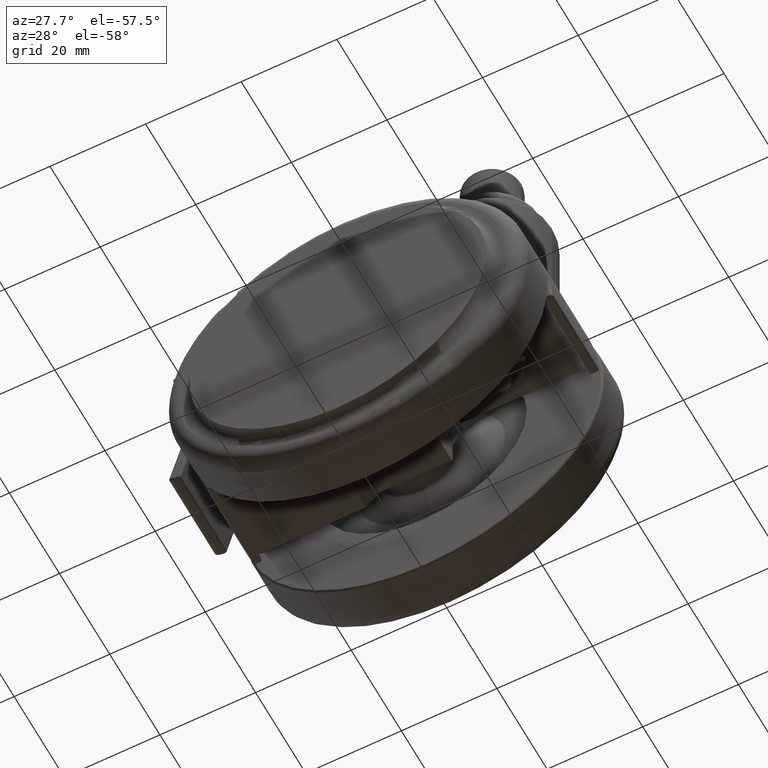
[diagram: clean part render]
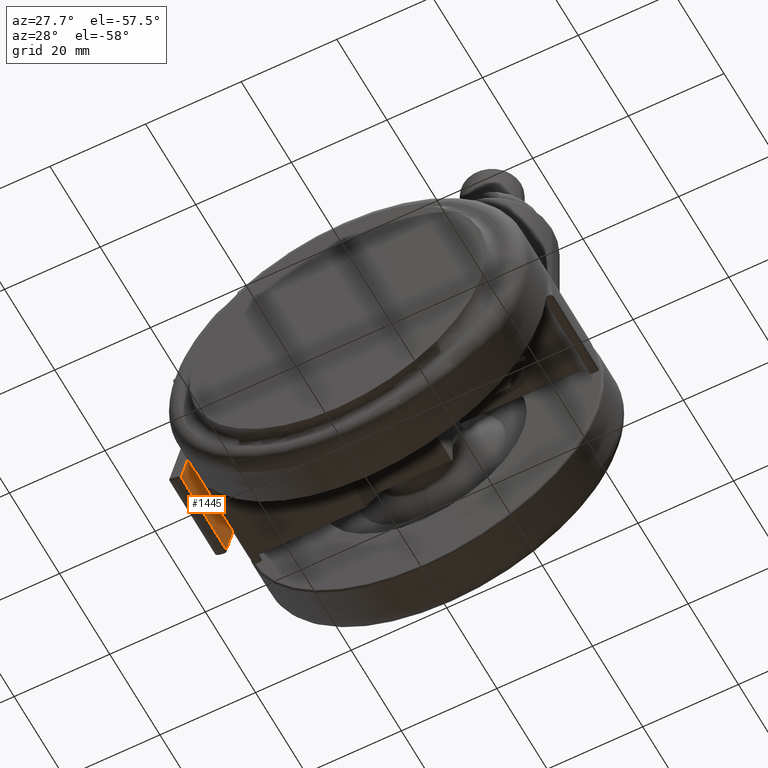
[diagram: same view with one face highlighted and labeled with its STEP entity id]
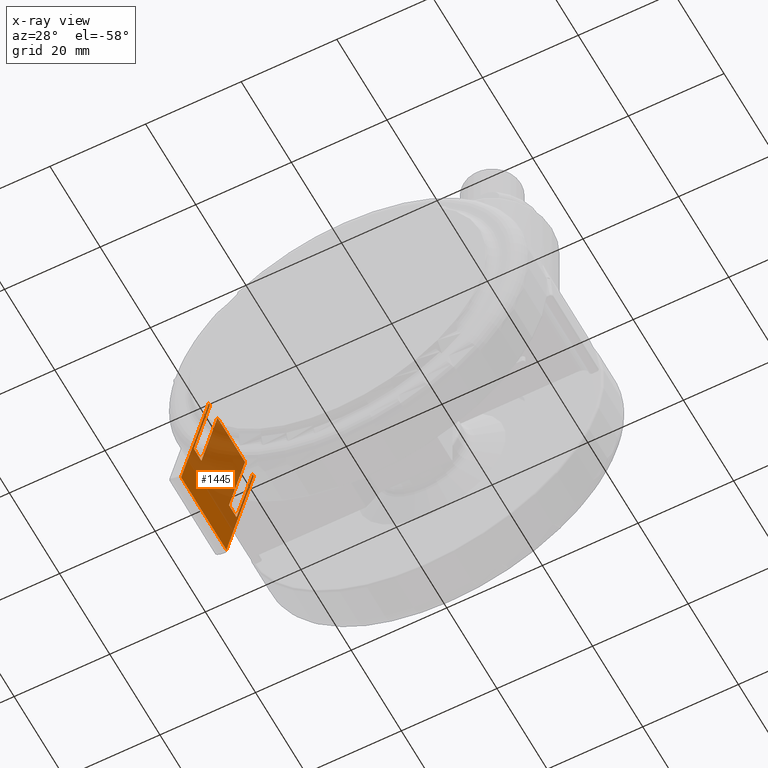
[diagram: x-ray of the same camera — body ghosted, the highlighted face saturated]
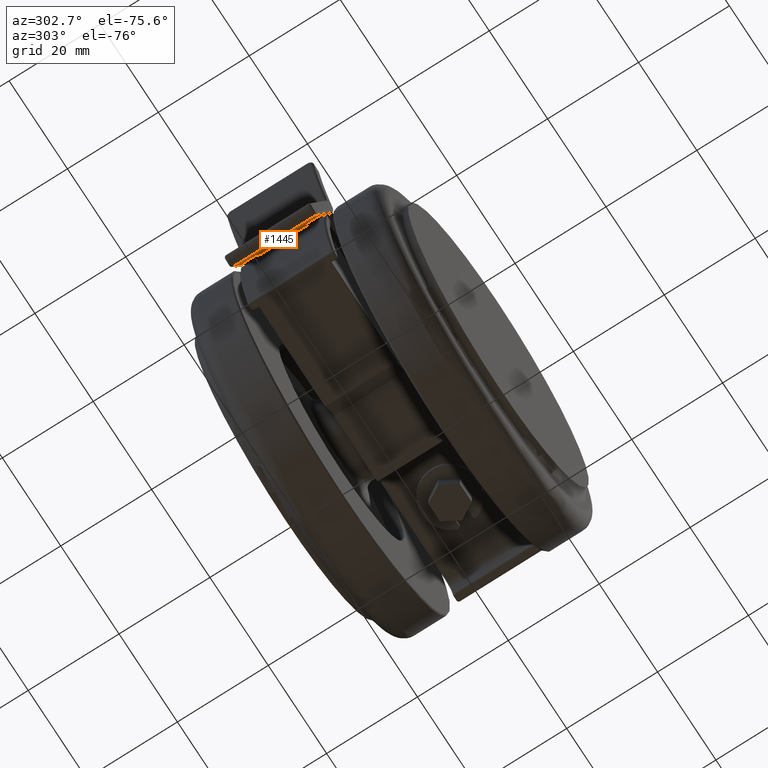
[diagram: same view with one face highlighted and labeled with its STEP entity id]
A machine part, auxiliary view. The second image highlights one B-rep face of the part: STEP entity #1445.
The next image is the same camera in x-ray: the body ghosted, the highlighted face saturated — about 69% of this face is hidden behind the body in this view.
A second angle (auxiliary view) of the same face is appended — the face is thin or edge-on in the first view.
In plain terms, the highlighted planar face has unit normal (-0.965, 0, 0.2623).
Its self-contained STEP definition (entity closure, byte-faithful):
#122 = DIRECTION ( 'NONE',  ( -0.2622656282287783600, -0.0000000000000000000, -0.9649957203271754000 ) ) ;
#162 = EDGE_CURVE ( 'NONE', #4327, #1350, #7352, .T. ) ;
#178 = ORIENTED_EDGE ( 'NONE', *, *, #3678, .T. ) ;
#316 = LINE ( 'NONE', #1978, #7916 ) ;
#480 = DIRECTION ( 'NONE',  ( -0.9649957203271755100, 0.0000000000000000000, 0.2622656282287784100 ) ) ;
#481 = ORIENTED_EDGE ( 'NONE', *, *, #1959, .F. ) ;
#552 = FACE_OUTER_BOUND ( 'NONE', #1404, .T. ) ;
#556 = DIRECTION ( 'NONE',  ( 0.2622656282287783600, 0.0000000000000000000, 0.9649957203271754000 ) ) ;
#576 = EDGE_CURVE ( 'NONE', #6257, #4125, #4623, .T. ) ;
#618 = VERTEX_POINT ( 'NONE', #2619 ) ;
#742 = VECTOR ( 'NONE', #3582, 1000.000000000000000 ) ;
#883 = CARTESIAN_POINT ( 'NONE',  ( -54.34046594793340300, 8.499999933647361100, -23.86954272025879900 ) ) ;
#968 = LINE ( 'NONE', #7602, #742 ) ;
#970 = LINE ( 'NONE', #7944, #6170 ) ;
#1350 = VERTEX_POINT ( 'NONE', #8455 ) ;
#1394 = ORIENTED_EDGE ( 'NONE', *, *, #3068, .T. ) ;
#1404 = EDGE_LOOP ( 'NONE', ( #1394, #3843, #7518, #3724, #3005, #4974, #8651, #481, #178, #2010, #8741, #5395 ) ) ;
#1418 = CARTESIAN_POINT ( 'NONE',  ( -54.57397015981370500, 9.000000000000000000, -24.72871197802484700 ) ) ;
#1421 = CARTESIAN_POINT ( 'NONE',  ( -54.34046594793330300, -5.499999933647139900, -23.86954272025839800 ) ) ;
#1444 = DIRECTION ( 'NONE',  ( 0.2622656282287783600, 0.0000000000000000000, 0.9649957203271754000 ) ) ;
#1445 = ADVANCED_FACE ( 'NONE', ( #552 ), #7807, .F. ) ;
#1451 = DIRECTION ( 'NONE',  ( -0.2622656282287783600, 3.947520370787422900E-016, -0.9649957203271754000 ) ) ;
#1504 = VERTEX_POINT ( 'NONE', #3018 ) ;
#1899 = VERTEX_POINT ( 'NONE', #2386 ) ;
#1925 = VECTOR ( 'NONE', #4299, 1000.000000000000100 ) ;
#1959 = EDGE_CURVE ( 'NONE', #4996, #1504, #4589, .T. ) ;
#1978 = CARTESIAN_POINT ( 'NONE',  ( -57.94016279915580000, 991.5000000663531000, -37.11448098900775200 ) ) ;
#2010 = ORIENTED_EDGE ( 'NONE', *, *, #576, .T. ) ;
#2122 = LINE ( 'NONE', #8034, #2348 ) ;
#2246 = LINE ( 'NONE', #2302, #7617 ) ;
#2302 = CARTESIAN_POINT ( 'NONE',  ( -57.94016279915729900, -991.5000000663531000, -37.11448098900775200 ) ) ;
#2348 = VECTOR ( 'NONE', #3357, 1000.000000000000000 ) ;
#2386 = CARTESIAN_POINT ( 'NONE',  ( -57.94016279915580000, 8.499999933647339700, -37.11448098900775200 ) ) ;
#2450 = CARTESIAN_POINT ( 'NONE',  ( -54.34046594793330300, -8.499999933647249200, -23.86954272025839800 ) ) ;
#2470 = VERTEX_POINT ( 'NONE', #4617 ) ;
#2563 = DIRECTION ( 'NONE',  ( 0.2622656282287783600, 0.0000000000000000000, 0.9649957203271754000 ) ) ;
#2619 = CARTESIAN_POINT ( 'NONE',  ( -60.33074788236010000, 9.000000000000000000, -45.91054164686020300 ) ) ;
#2648 = EDGE_CURVE ( 'NONE', #1350, #1899, #5548, .T. ) ;
#2820 = CARTESIAN_POINT ( 'NONE',  ( -60.42317398674260400, -9.000000000000119000, -46.25061974164520300 ) ) ;
#2824 = CARTESIAN_POINT ( 'NONE',  ( -54.57397015981370500, -9.000000000000119000, -24.72871197802484700 ) ) ;
#2835 = VECTOR ( 'NONE', #8489, 1000.000000000000100 ) ;
#2958 = DIRECTION ( 'NONE',  ( 0.0000000000000000000, -1.000000000000000000, 0.0000000000000000000 ) ) ;
#2998 = VERTEX_POINT ( 'NONE', #7551 ) ;
#3005 = ORIENTED_EDGE ( 'NONE', *, *, #5544, .F. ) ;
#3018 = CARTESIAN_POINT ( 'NONE',  ( -54.57397015981370500, -5.499999933647139900, -24.72871197802484700 ) ) ;
#3029 = VECTOR ( 'NONE', #1444, 1000.000000000000100 ) ;
#3068 = EDGE_CURVE ( 'NONE', #2470, #618, #968, .T. ) ;
#3175 = DIRECTION ( 'NONE',  ( 1.505161159488250100E-015, 1.000000000000000000, 0.0000000000000000000 ) ) ;
#3357 = DIRECTION ( 'NONE',  ( 0.0000000000000000000, -1.000000000000000000, 0.0000000000000000000 ) ) ;
#3365 = AXIS2_PLACEMENT_3D ( 'NONE', #3556, #480, #556 ) ;
#3556 = CARTESIAN_POINT ( 'NONE',  ( -54.34046594793330300, 990.5000000000000000, -23.86954272025839800 ) ) ;
#3582 = DIRECTION ( 'NONE',  ( 0.0000000000000000000, 1.000000000000000000, 0.0000000000000000000 ) ) ;
#3678 = EDGE_CURVE ( 'NONE', #4996, #6257, #316, .T. ) ;
#3724 = ORIENTED_EDGE ( 'NONE', *, *, #2648, .T. ) ;
#3843 = ORIENTED_EDGE ( 'NONE', *, *, #5251, .T. ) ;
#3861 = EDGE_CURVE ( 'NONE', #8358, #2470, #7092, .T. ) ;
#4125 = VERTEX_POINT ( 'NONE', #8604 ) ;
#4299 = DIRECTION ( 'NONE',  ( -0.2622656282287783600, 3.947520370787422900E-016, -0.9649957203271754000 ) ) ;
#4327 = VERTEX_POINT ( 'NONE', #1418 ) ;
#4375 = CARTESIAN_POINT ( 'NONE',  ( -57.94016279915580000, -5.499999933647139900, -37.11448098900775200 ) ) ;
#4516 = CARTESIAN_POINT ( 'NONE',  ( -57.94016279915580000, -8.499999933647249200, -37.11448098900775200 ) ) ;
#4589 = LINE ( 'NONE', #1421, #3029 ) ;
#4617 = CARTESIAN_POINT ( 'NONE',  ( -60.33074788236010000, -9.000000000000119000, -45.91054164686020300 ) ) ;
#4623 = LINE ( 'NONE', #2450, #2835 ) ;
#4658 = VECTOR ( 'NONE', #122, 1000.000000000000100 ) ;
#4683 = DIRECTION ( 'NONE',  ( 0.0000000000000000000, -1.000000000000000000, 0.0000000000000000000 ) ) ;
#4974 = ORIENTED_EDGE ( 'NONE', *, *, #5443, .F. ) ;
#4996 = VERTEX_POINT ( 'NONE', #4375 ) ;
#5107 = VECTOR ( 'NONE', #1451, 1000.000000000000100 ) ;
#5251 = EDGE_CURVE ( 'NONE', #618, #4327, #970, .T. ) ;
#5395 = ORIENTED_EDGE ( 'NONE', *, *, #3861, .T. ) ;
#5416 = VERTEX_POINT ( 'NONE', #6814 ) ;
#5443 = EDGE_CURVE ( 'NONE', #2998, #5416, #6687, .T. ) ;
#5528 = CARTESIAN_POINT ( 'NONE',  ( -54.34046594793340300, 5.499999933647250000, -23.86954272025879900 ) ) ;
#5544 = EDGE_CURVE ( 'NONE', #5416, #1899, #2246, .T. ) ;
#5548 = LINE ( 'NONE', #883, #1925 ) ;
#5610 = VECTOR ( 'NONE', #8705, 1000.000000000000000 ) ;
#5825 = LINE ( 'NONE', #8031, #5610 ) ;
#6170 = VECTOR ( 'NONE', #2563, 1000.000000000000100 ) ;
#6257 = VERTEX_POINT ( 'NONE', #4516 ) ;
#6507 = EDGE_CURVE ( 'NONE', #2998, #1504, #2122, .T. ) ;
#6687 = LINE ( 'NONE', #5528, #5107 ) ;
#6814 = CARTESIAN_POINT ( 'NONE',  ( -57.94016279915580000, 5.499999933647229600, -37.11448098900775200 ) ) ;
#6987 = CARTESIAN_POINT ( 'NONE',  ( -54.57397015981370500, 990.5000000000000000, -24.72871197802484700 ) ) ;
#7092 = LINE ( 'NONE', #2820, #4658 ) ;
#7221 = EDGE_CURVE ( 'NONE', #4125, #8358, #5825, .T. ) ;
#7352 = LINE ( 'NONE', #6987, #8719 ) ;
#7518 = ORIENTED_EDGE ( 'NONE', *, *, #162, .T. ) ;
#7551 = CARTESIAN_POINT ( 'NONE',  ( -54.57397015981370500, 5.499999933647250000, -24.72871197802484700 ) ) ;
#7602 = CARTESIAN_POINT ( 'NONE',  ( -60.33074788236010000, 9.500000000000000000, -45.91054164686020300 ) ) ;
#7617 = VECTOR ( 'NONE', #3175, 1000.000000000000000 ) ;
#7807 = PLANE ( 'NONE',  #3365 ) ;
#7916 = VECTOR ( 'NONE', #4683, 1000.000000000000000 ) ;
#7944 = CARTESIAN_POINT ( 'NONE',  ( -54.34046594793330300, 9.000000000000000000, -23.86954272025839800 ) ) ;
#8031 = CARTESIAN_POINT ( 'NONE',  ( -54.57397015981370500, 990.5000000000000000, -24.72871197802484700 ) ) ;
#8034 = CARTESIAN_POINT ( 'NONE',  ( -54.57397015981370500, 990.5000000000000000, -24.72871197802484700 ) ) ;
#8358 = VERTEX_POINT ( 'NONE', #2824 ) ;
#8455 = CARTESIAN_POINT ( 'NONE',  ( -54.57397015981370500, 8.499999933647361100, -24.72871197802484700 ) ) ;
#8489 = DIRECTION ( 'NONE',  ( 0.2622656282287783600, 0.0000000000000000000, 0.9649957203271754000 ) ) ;
#8604 = CARTESIAN_POINT ( 'NONE',  ( -54.57397015981370500, -8.499999933647249200, -24.72871197802484700 ) ) ;
#8651 = ORIENTED_EDGE ( 'NONE', *, *, #6507, .T. ) ;
#8705 = DIRECTION ( 'NONE',  ( 0.0000000000000000000, -1.000000000000000000, 0.0000000000000000000 ) ) ;
#8719 = VECTOR ( 'NONE', #2958, 1000.000000000000000 ) ;
#8741 = ORIENTED_EDGE ( 'NONE', *, *, #7221, .T. ) ;